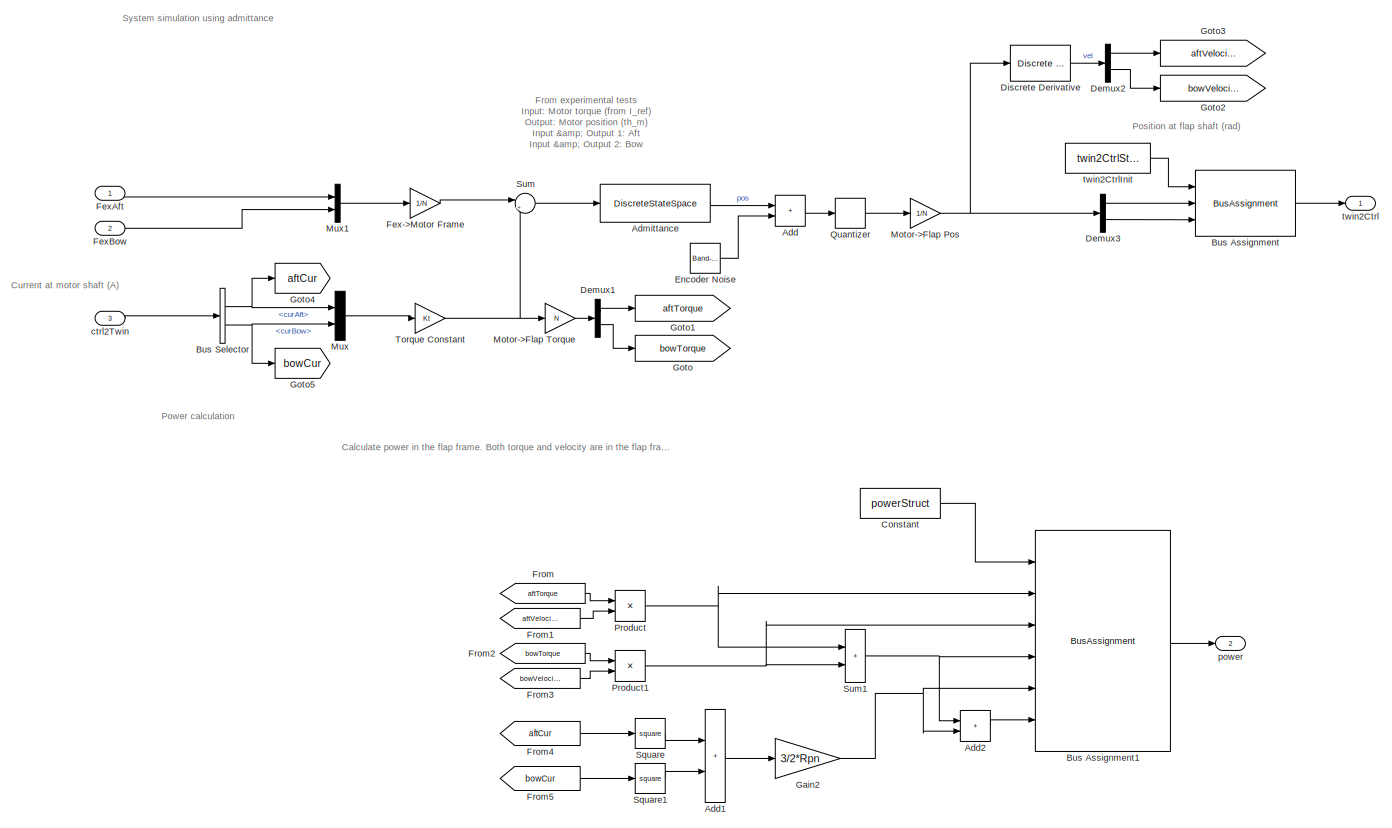
[diagram: root canvas - part 1/1, most of the canvas]
MODEL slx_40bd15be9dbf
KIND model
CONFIG AbsTol = auto
CONFIG EnableMultiTasking = off
CONFIG FixedStep = Ts
CONFIG MaxStep = auto
CONFIG MinStep = auto
CONFIG RelTol = 1e-3
CONFIG SampleTimeConstraint = Unconstrained
CONFIG SolverName = FixedStepAuto
CONFIG StartTime = 0.0
CONFIG StopTime = 60
BLOCK [Sum] Add
  IconShape = rectangular
  Ports = [2, 1]
BLOCK [Sum] Add1
  IconShape = rectangular
  Ports = [2, 1]
BLOCK [Sum] Add2
  IconShape = rectangular
  Ports = [2, 1]
BLOCK [DiscreteStateSpace] Admittance
  A = admittance_ss.A
  B = admittance_ss.B
  C = admittance_ss.C
  D = admittance_ss.D
  SampleTime = -1
BLOCK [BusAssignment] Bus Assignment
  AssignedSignals = posFlapAft,posFlapBow
  Ports = [3, 1]
BLOCK [BusAssignment] Bus Assignment1
  AssignedSignals = powerMechAft,powerMechBow,powerMechTotal,powerI2R,powerNet
  Ports = [6, 1]
BLOCK [BusSelector] Bus Selector
  OutputSignals = curAft,curBow
  Ports = [1, 2]
BLOCK [Constant] Constant
  OutDataTypeStr = Bus: powerBus
  Value = powerStruct
BLOCK [Demux] Demux1
  Outputs = 2
  Ports = [1, 2]
BLOCK [Demux] Demux2
  Outputs = 2
  Ports = [1, 2]
BLOCK [Demux] Demux3
  Outputs = 2
  Ports = [1, 2]
BLOCK [Reference] Discrete Derivative  REF=simulink/Discrete/Discrete Derivative
  Ports = [1, 1]
  SourceBlock = simulink/Discrete/Discrete Derivative
  SourceProductBaseCode = SL
  SourceType = Discrete Derivative
BLOCK [Reference] Encoder Noise  REF=simulink/Sources/Band-Limited
White Noise
  Ports = [0, 1]
  SourceBlock = simulink/Sources/Band-Limited\nWhite Noise
  SourceProductBaseCode = SL
  SourceType = Band-Limited White Noise.
BLOCK [Gain] Fex->Motor Frame
  Gain = 1/N
BLOCK [Inport] FexAft
  Interpolate = off
BLOCK [Inport] FexBow
  Interpolate = off
  Port = 2
BLOCK [From] From
  GotoTag = aftTorque
BLOCK [From] From1
  GotoTag = aftVelocity
BLOCK [From] From2
  GotoTag = bowTorque
BLOCK [From] From3
  GotoTag = bowVelocity
BLOCK [From] From4
  GotoTag = aftCur
BLOCK [From] From5
  GotoTag = bowCur
BLOCK [Gain] Gain2
  Gain = 3/2*Rpn
BLOCK [Goto] Goto
  GotoTag = bowTorque
BLOCK [Goto] Goto1
  GotoTag = aftTorque
BLOCK [Goto] Goto2
  GotoTag = bowVelocity
BLOCK [Goto] Goto3
  GotoTag = aftVelocity
BLOCK [Goto] Goto4
  GotoTag = aftCur
BLOCK [Goto] Goto5
  GotoTag = bowCur
BLOCK [Gain] Motor->Flap Pos
  Gain = 1/N
BLOCK [Gain] Motor->Flap Torque
  Gain = N
BLOCK [Mux] Mux
  DisplayOption = bar
  Inputs = 2
  Ports = [2, 1]
BLOCK [Mux] Mux1
  DisplayOption = bar
  Inputs = 2
  Ports = [2, 1]
BLOCK [Product] Product
  Ports = [2, 1]
BLOCK [Product] Product1
  Ports = [2, 1]
BLOCK [Quantizer] Quantizer
  QuantizationInterval = 2*pi/encCountsPerRev
BLOCK [Math] Square
  Operator = square
  Ports = [1, 1]
BLOCK [Math] Square1
  Operator = square
  Ports = [1, 1]
BLOCK [Sum] Sum
  Inputs = |++
  OutDataTypeStr = double
  Ports = [2, 1]
BLOCK [Sum] Sum1
  IconShape = rectangular
  Ports = [2, 1]
BLOCK [Gain] Torque Constant
  Gain = Kt
BLOCK [Inport] ctrl2Twin
  OutDataTypeStr = Bus: ctrl2TwinBus
  Port = 3
BLOCK [Outport] power
  OutDataTypeStr = Bus: powerBus
  Port = 2
BLOCK [Outport] twin2Ctrl
  OutDataTypeStr = Bus: twin2CtrlBus
BLOCK [Constant] twin2CtrlInit
  OutDataTypeStr = Bus: twin2CtrlBus
  Value = twin2CtrlStruct
ANNOTATION (root): From experimental tests Input: Motor torque (from I_ref) Output: Motor position (th_m) Input & Output 1: Aft Input & Output 2: Bow
ANNOTATION (root): Position at flap shaft (rad)
ANNOTATION (root): Calculate power in the flap frame. Both torque and velocity are in the flap frame.
ANNOTATION (root): Current at motor shaft (A)
ANNOTATION (root): Power calculation
ANNOTATION (root): System simulation using admittance
LINE Add1:1 -> Gain2:1
LINE Add2:1 -> Bus Assignment1:6
LINE Add:1 -> Quantizer:1
LINE Admittance:1 -> Add:1
LINE Bus Assignment1:1 -> power:1
LINE Bus Assignment:1 -> twin2Ctrl:1
NET Bus Selector:1 -> Goto4:1, Mux:1
NET Bus Selector:2 -> Goto5:1, Mux:2
LINE Constant:1 -> Bus Assignment1:1
LINE Demux1:1 -> Goto1:1
LINE Demux1:2 -> Goto:1
LINE Demux2:1 -> Goto3:1
LINE Demux2:2 -> Goto2:1
LINE Demux3:1 -> Bus Assignment:2
LINE Demux3:2 -> Bus Assignment:3
LINE Discrete Derivative:1 -> Demux2:1
LINE Encoder Noise:1 -> Add:2
LINE Fex->Motor Frame:1 -> Sum:1
LINE FexAft:1 -> Mux1:1
LINE FexBow:1 -> Mux1:2
LINE From1:1 -> Product:2
LINE From2:1 -> Product1:1
LINE From3:1 -> Product1:2
LINE From4:1 -> Square:1
LINE From5:1 -> Square1:1
LINE From:1 -> Product:1
NET Gain2:1 -> Add2:2, Bus Assignment1:5
NET Motor->Flap Pos:1 -> Demux3:1, Discrete Derivative:1
LINE Motor->Flap Torque:1 -> Demux1:1
LINE Mux1:1 -> Fex->Motor Frame:1
LINE Mux:1 -> Torque Constant:1
NET Product1:1 -> Bus Assignment1:3, Sum1:2
NET Product:1 -> Bus Assignment1:2, Sum1:1
LINE Quantizer:1 -> Motor->Flap Pos:1
LINE Square1:1 -> Add1:2
LINE Square:1 -> Add1:1
NET Sum1:1 -> Add2:1, Bus Assignment1:4
LINE Sum:1 -> Admittance:1
NET Torque Constant:1 -> Motor->Flap Torque:1, Sum:2
LINE ctrl2Twin:1 -> Bus Selector:1
LINE twin2CtrlInit:1 -> Bus Assignment:1
note: NET lines group one-source signal fan-out (src -> all destinations, sorted); 1:1 wires keep LINE
